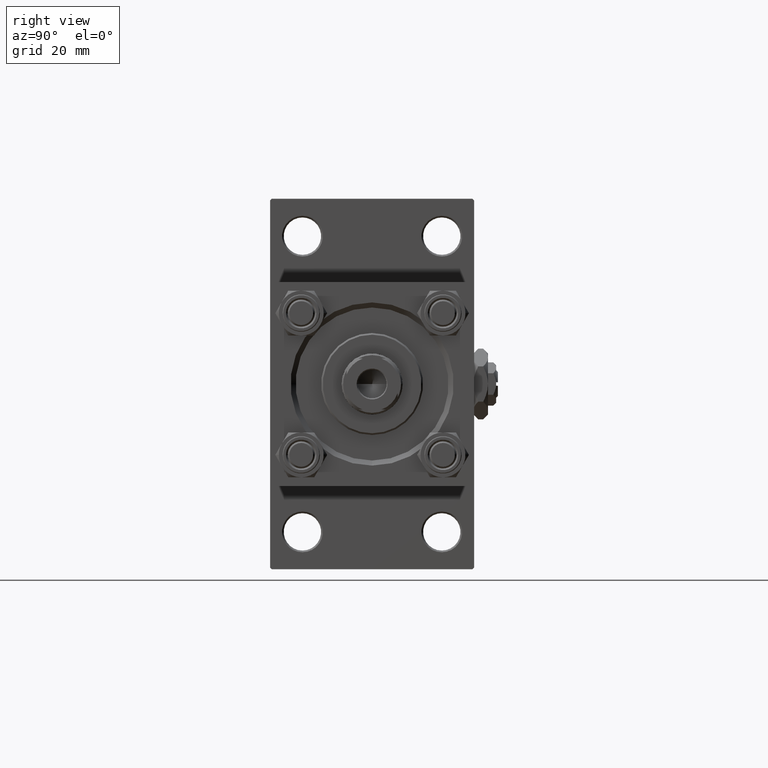
[diagram: clean part render]
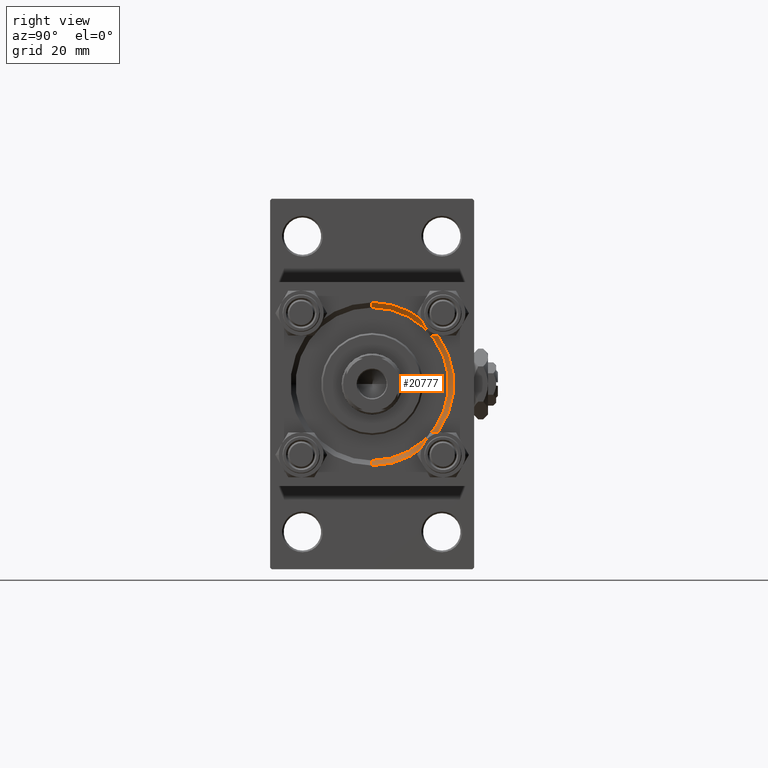
[diagram: same view with one face highlighted and labeled with its STEP entity id]
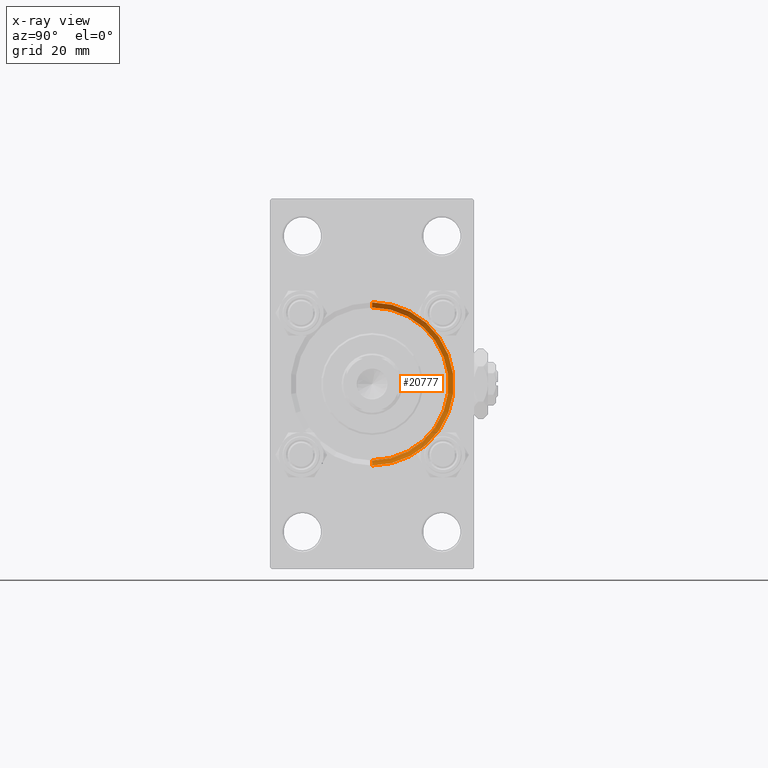
[diagram: x-ray of the same camera — body ghosted, the highlighted face saturated]
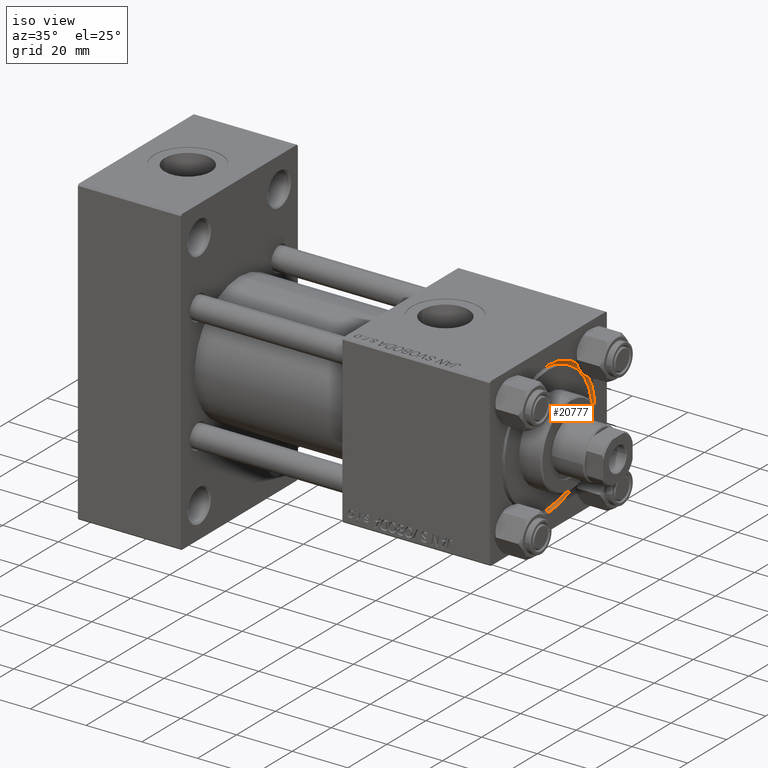
[diagram: same view with one face highlighted and labeled with its STEP entity id]
A machine part, right view. The second image highlights one B-rep face of the part: STEP entity #20777.
The next image is the same camera in x-ray: the body ghosted, the highlighted face saturated — about 0% of this face is hidden behind the body in this view.
A second angle (iso view) of the same face is appended — the face is thin or edge-on in the first view.
In plain terms, the highlighted conical surface has half-angle 45 deg.
Its self-contained STEP definition (entity closure, byte-faithful):
#3178 = LINE ( 'NONE', #24232, #36412 ) ;
#3774 = ORIENTED_EDGE ( 'NONE', *, *, #14354, .F. ) ;
#4308 = DIRECTION ( 'NONE',  ( 1.000000000000000000, 0.000000000000000000, 0.000000000000000000 ) ) ;
#6174 = LINE ( 'NONE', #22234, #51153 ) ;
#6436 = EDGE_CURVE ( 'NONE', #50539, #36774, #3178, .T. ) ;
#11712 = AXIS2_PLACEMENT_3D ( 'NONE', #20369, #4308, #24330 ) ;
#12474 = CARTESIAN_POINT ( 'NONE',  ( 148.0000000000000000, 0.000000000000000000, -23.99999999999996803 ) ) ;
#14310 = AXIS2_PLACEMENT_3D ( 'NONE', #20437, #20695, #48089 ) ;
#14354 = EDGE_CURVE ( 'NONE', #22315, #35580, #6174, .T. ) ;
#16306 = CARTESIAN_POINT ( 'NONE',  ( 146.5000000000000284, 2.755455298081545172E-15, 22.50000000000000355 ) ) ;
#18918 = EDGE_CURVE ( 'NONE', #50539, #22315, #41953, .T. ) ;
#19246 = DIRECTION ( 'NONE',  ( 0.7071067811865491270, 0.000000000000000000, -0.7071067811865459074 ) ) ;
#20110 = FACE_OUTER_BOUND ( 'NONE', #27259, .T. ) ;
#20369 = CARTESIAN_POINT ( 'NONE',  ( 146.5000000000000284, 0.000000000000000000, 0.000000000000000000 ) ) ;
#20437 = CARTESIAN_POINT ( 'NONE',  ( 148.0000000000000000, 0.000000000000000000, 0.000000000000000000 ) ) ;
#20695 = DIRECTION ( 'NONE',  ( -1.000000000000000000, 0.000000000000000000, -0.000000000000000000 ) ) ;
#20777 = ADVANCED_FACE ( 'NONE', ( #20110 ), #21003, .F. ) ;
#20875 = DIRECTION ( 'NONE',  ( 1.000000000000000000, 0.000000000000000000, 0.000000000000000000 ) ) ;
#21003 = CONICAL_SURFACE ( 'NONE', #11712, 22.50000000000000355, 0.7853981633974460586 ) ;
#21878 = CIRCLE ( 'NONE', #14310, 23.99999999999996803 ) ;
#22234 = CARTESIAN_POINT ( 'NONE',  ( 146.5000000000000284, 2.755455298081545172E-15, 22.50000000000000355 ) ) ;
#22315 = VERTEX_POINT ( 'NONE', #16306 ) ;
#24232 = CARTESIAN_POINT ( 'NONE',  ( 146.5000000000000284, 0.000000000000000000, -22.50000000000000355 ) ) ;
#24330 = DIRECTION ( 'NONE',  ( 0.000000000000000000, 0.000000000000000000, -1.000000000000000000 ) ) ;
#26712 = CARTESIAN_POINT ( 'NONE',  ( 148.0000000000000000, 2.939152317953644345E-15, 23.99999999999996803 ) ) ;
#27259 = EDGE_LOOP ( 'NONE', ( #3774, #40298, #48425, #48446 ) ) ;
#27683 = AXIS2_PLACEMENT_3D ( 'NONE', #41653, #20875, #41137 ) ;
#31168 = DIRECTION ( 'NONE',  ( 0.7071067811865491270, 8.659560562354913137E-17, 0.7071067811865459074 ) ) ;
#34374 = CARTESIAN_POINT ( 'NONE',  ( 146.5000000000000284, 0.000000000000000000, -22.50000000000000355 ) ) ;
#35580 = VERTEX_POINT ( 'NONE', #26712 ) ;
#36322 = EDGE_CURVE ( 'NONE', #35580, #36774, #21878, .T. ) ;
#36412 = VECTOR ( 'NONE', #19246, 1000.000000000000000 ) ;
#36774 = VERTEX_POINT ( 'NONE', #12474 ) ;
#40298 = ORIENTED_EDGE ( 'NONE', *, *, #18918, .F. ) ;
#41137 = DIRECTION ( 'NONE',  ( 0.000000000000000000, 0.000000000000000000, 1.000000000000000000 ) ) ;
#41653 = CARTESIAN_POINT ( 'NONE',  ( 146.5000000000000284, 0.000000000000000000, 0.000000000000000000 ) ) ;
#41953 = CIRCLE ( 'NONE', #27683, 22.50000000000000355 ) ;
#48089 = DIRECTION ( 'NONE',  ( 0.000000000000000000, 0.000000000000000000, 1.000000000000000000 ) ) ;
#48425 = ORIENTED_EDGE ( 'NONE', *, *, #6436, .T. ) ;
#48446 = ORIENTED_EDGE ( 'NONE', *, *, #36322, .F. ) ;
#50539 = VERTEX_POINT ( 'NONE', #34374 ) ;
#51153 = VECTOR ( 'NONE', #31168, 1000.000000000000000 ) ;